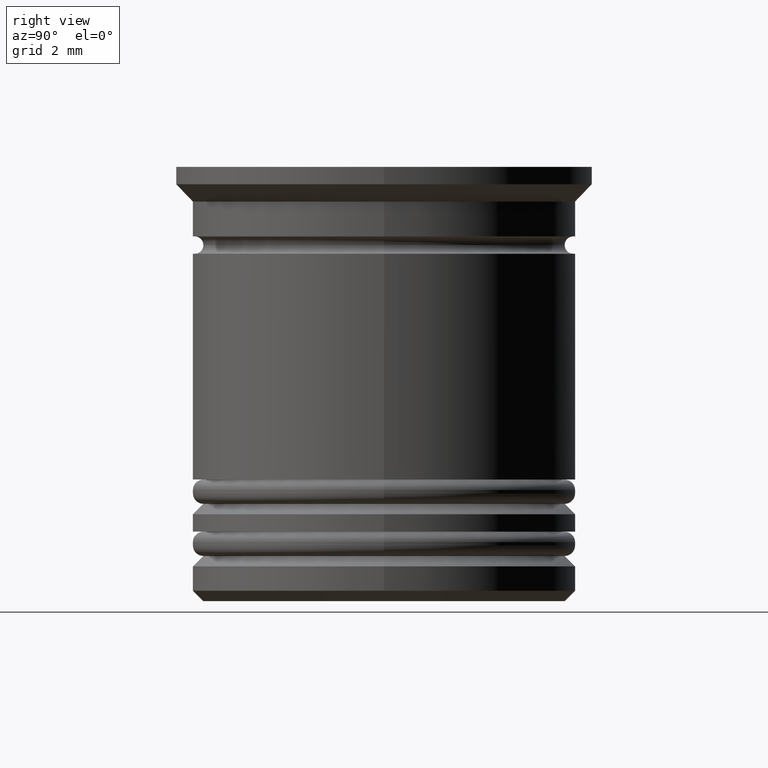
[diagram: clean part render]
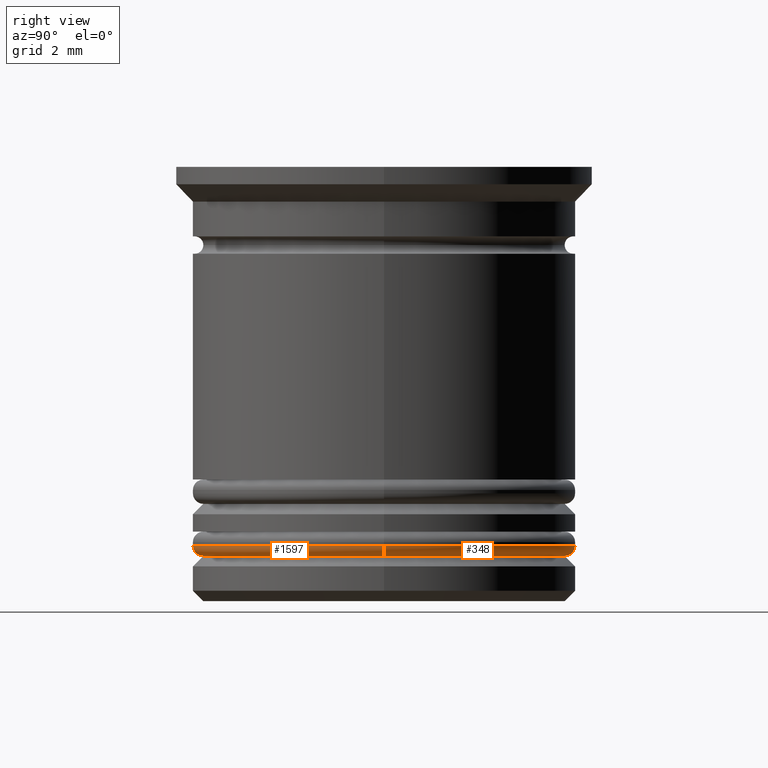
[diagram: same view with one multi-face feature highlighted, each face labeled with its STEP entity id]
A machine part, right view. The highlighted faces form ONE feature: a constant-radius fillet chain: 2 tangent blend faces with common blend radius 0.3 mm. The faces share edges in the B-rep.
Their STEP definitions:
[1] entity #1597 (Torus):
#43 = CARTESIAN_POINT ( 'NONE',  ( 5.200000000000001066, 0.000000000000000000, -10.90000000000000746 ) ) ;
#159 = ORIENTED_EDGE ( 'NONE', *, *, #1772, .T. ) ;
#165 = CARTESIAN_POINT ( 'NONE',  ( 0.000000000000000000, 0.000000000000000000, -10.90000000000000746 ) ) ;
#248 = CIRCLE ( 'NONE', #1848, 5.200000000000001066 ) ;
#317 = TOROIDAL_SURFACE ( 'NONE', #772, 5.200000000000001066, 0.2999999999999999889 ) ;
#367 = VERTEX_POINT ( 'NONE', #1965 ) ;
#408 = CIRCLE ( 'NONE', #1563, 5.500000000000001776 ) ;
#410 = AXIS2_PLACEMENT_3D ( 'NONE', #1320, #1175, #578 ) ;
#531 = AXIS2_PLACEMENT_3D ( 'NONE', #43, #1904, #639 ) ;
#578 = DIRECTION ( 'NONE',  ( -1.000000000000000000, 1.224646799147353207E-16, 0.000000000000000000 ) ) ;
#597 = CARTESIAN_POINT ( 'NONE',  ( 5.500000000000001776, 0.000000000000000000, -10.90000000000000746 ) ) ;
#616 = DIRECTION ( 'NONE',  ( 0.000000000000000000, 0.000000000000000000, 1.000000000000000000 ) ) ;
#627 = DIRECTION ( 'NONE',  ( 1.000000000000000000, 0.000000000000000000, 0.000000000000000000 ) ) ;
#639 = DIRECTION ( 'NONE',  ( 0.000000000000000000, 0.000000000000000000, -1.000000000000000000 ) ) ;
#677 = ORIENTED_EDGE ( 'NONE', *, *, #740, .F. ) ;
#714 = ORIENTED_EDGE ( 'NONE', *, *, #1046, .F. ) ;
#730 = VERTEX_POINT ( 'NONE', #1258 ) ;
#740 = EDGE_CURVE ( 'NONE', #367, #1371, #408, .T. ) ;
#772 = AXIS2_PLACEMENT_3D ( 'NONE', #1987, #616, #627 ) ;
#1033 = ORIENTED_EDGE ( 'NONE', *, *, #1608, .F. ) ;
#1046 = EDGE_CURVE ( 'NONE', #730, #367, #1757, .T. ) ;
#1067 = FACE_OUTER_BOUND ( 'NONE', #1782, .T. ) ;
#1097 = CARTESIAN_POINT ( 'NONE',  ( 5.200000000000001066, 0.000000000000000000, -11.20000000000000462 ) ) ;
#1175 = DIRECTION ( 'NONE',  ( 1.224646799147353207E-16, 1.000000000000000000, -0.000000000000000000 ) ) ;
#1258 = CARTESIAN_POINT ( 'NONE',  ( -5.200000000000001066, 6.551860375438340681E-16, -11.20000000000000462 ) ) ;
#1320 = CARTESIAN_POINT ( 'NONE',  ( -5.200000000000001066, 6.368163355566238354E-16, -10.90000000000000746 ) ) ;
#1371 = VERTEX_POINT ( 'NONE', #597 ) ;
#1418 = DIRECTION ( 'NONE',  ( 0.000000000000000000, 0.000000000000000000, 1.000000000000000000 ) ) ;
#1547 = DIRECTION ( 'NONE',  ( 1.000000000000000000, 0.000000000000000000, 0.000000000000000000 ) ) ;
#1563 = AXIS2_PLACEMENT_3D ( 'NONE', #165, #1418, #1708 ) ;
#1597 = ADVANCED_FACE ( 'NONE', ( #1067 ), #317, .T. ) ;
#1608 = EDGE_CURVE ( 'NONE', #1738, #730, #248, .T. ) ;
#1708 = DIRECTION ( 'NONE',  ( 1.000000000000000000, 0.000000000000000000, 0.000000000000000000 ) ) ;
#1722 = CIRCLE ( 'NONE', #531, 0.2999999999999999334 ) ;
#1738 = VERTEX_POINT ( 'NONE', #1097 ) ;
#1757 = CIRCLE ( 'NONE', #410, 0.2999999999999999334 ) ;
#1772 = EDGE_CURVE ( 'NONE', #1738, #1371, #1722, .T. ) ;
#1782 = EDGE_LOOP ( 'NONE', ( #714, #1033, #159, #677 ) ) ;
#1807 = CARTESIAN_POINT ( 'NONE',  ( 0.000000000000000000, 0.000000000000000000, -11.20000000000000462 ) ) ;
#1848 = AXIS2_PLACEMENT_3D ( 'NONE', #1807, #1973, #1547 ) ;
#1904 = DIRECTION ( 'NONE',  ( 0.000000000000000000, -1.000000000000000000, 0.000000000000000000 ) ) ;
#1965 = CARTESIAN_POINT ( 'NONE',  ( -5.500000000000001776, 6.735557395310443009E-16, -10.90000000000000746 ) ) ;
#1973 = DIRECTION ( 'NONE',  ( -0.000000000000000000, -0.000000000000000000, -1.000000000000000000 ) ) ;
#1987 = CARTESIAN_POINT ( 'NONE',  ( 0.000000000000000000, 0.000000000000000000, -10.90000000000000746 ) ) ;
[2] entity #348 (Torus):
#43 = CARTESIAN_POINT ( 'NONE',  ( 5.200000000000001066, 0.000000000000000000, -10.90000000000000746 ) ) ;
#118 = EDGE_CURVE ( 'NONE', #730, #1738, #1589, .T. ) ;
#237 = CIRCLE ( 'NONE', #1361, 5.500000000000001776 ) ;
#265 = EDGE_CURVE ( 'NONE', #1371, #367, #237, .T. ) ;
#348 = ADVANCED_FACE ( 'NONE', ( #1638 ), #1394, .T. ) ;
#367 = VERTEX_POINT ( 'NONE', #1965 ) ;
#405 = CARTESIAN_POINT ( 'NONE',  ( 0.000000000000000000, 0.000000000000000000, -11.20000000000000462 ) ) ;
#410 = AXIS2_PLACEMENT_3D ( 'NONE', #1320, #1175, #578 ) ;
#445 = ORIENTED_EDGE ( 'NONE', *, *, #265, .F. ) ;
#531 = AXIS2_PLACEMENT_3D ( 'NONE', #43, #1904, #639 ) ;
#578 = DIRECTION ( 'NONE',  ( -1.000000000000000000, 1.224646799147353207E-16, 0.000000000000000000 ) ) ;
#597 = CARTESIAN_POINT ( 'NONE',  ( 5.500000000000001776, 0.000000000000000000, -10.90000000000000746 ) ) ;
#613 = CARTESIAN_POINT ( 'NONE',  ( 0.000000000000000000, 0.000000000000000000, -10.90000000000000746 ) ) ;
#639 = DIRECTION ( 'NONE',  ( 0.000000000000000000, 0.000000000000000000, -1.000000000000000000 ) ) ;
#720 = DIRECTION ( 'NONE',  ( 0.000000000000000000, 0.000000000000000000, 1.000000000000000000 ) ) ;
#729 = DIRECTION ( 'NONE',  ( 0.000000000000000000, 0.000000000000000000, 1.000000000000000000 ) ) ;
#730 = VERTEX_POINT ( 'NONE', #1258 ) ;
#1005 = ORIENTED_EDGE ( 'NONE', *, *, #1046, .T. ) ;
#1046 = EDGE_CURVE ( 'NONE', #730, #367, #1757, .T. ) ;
#1097 = CARTESIAN_POINT ( 'NONE',  ( 5.200000000000001066, 0.000000000000000000, -11.20000000000000462 ) ) ;
#1112 = ORIENTED_EDGE ( 'NONE', *, *, #1772, .F. ) ;
#1175 = DIRECTION ( 'NONE',  ( 1.224646799147353207E-16, 1.000000000000000000, -0.000000000000000000 ) ) ;
#1258 = CARTESIAN_POINT ( 'NONE',  ( -5.200000000000001066, 6.551860375438340681E-16, -11.20000000000000462 ) ) ;
#1294 = DIRECTION ( 'NONE',  ( 1.000000000000000000, 0.000000000000000000, 0.000000000000000000 ) ) ;
#1320 = CARTESIAN_POINT ( 'NONE',  ( -5.200000000000001066, 6.368163355566238354E-16, -10.90000000000000746 ) ) ;
#1344 = CARTESIAN_POINT ( 'NONE',  ( 0.000000000000000000, 0.000000000000000000, -10.90000000000000746 ) ) ;
#1361 = AXIS2_PLACEMENT_3D ( 'NONE', #613, #720, #1660 ) ;
#1371 = VERTEX_POINT ( 'NONE', #597 ) ;
#1394 = TOROIDAL_SURFACE ( 'NONE', #1723, 5.200000000000001066, 0.2999999999999999889 ) ;
#1526 = AXIS2_PLACEMENT_3D ( 'NONE', #405, #1918, #1294 ) ;
#1530 = ORIENTED_EDGE ( 'NONE', *, *, #118, .F. ) ;
#1589 = CIRCLE ( 'NONE', #1526, 5.200000000000001066 ) ;
#1638 = FACE_OUTER_BOUND ( 'NONE', #1799, .T. ) ;
#1660 = DIRECTION ( 'NONE',  ( 1.000000000000000000, 0.000000000000000000, 0.000000000000000000 ) ) ;
#1722 = CIRCLE ( 'NONE', #531, 0.2999999999999999334 ) ;
#1723 = AXIS2_PLACEMENT_3D ( 'NONE', #1344, #729, #1801 ) ;
#1738 = VERTEX_POINT ( 'NONE', #1097 ) ;
#1757 = CIRCLE ( 'NONE', #410, 0.2999999999999999334 ) ;
#1772 = EDGE_CURVE ( 'NONE', #1738, #1371, #1722, .T. ) ;
#1799 = EDGE_LOOP ( 'NONE', ( #1530, #1005, #445, #1112 ) ) ;
#1801 = DIRECTION ( 'NONE',  ( 1.000000000000000000, 0.000000000000000000, 0.000000000000000000 ) ) ;
#1904 = DIRECTION ( 'NONE',  ( 0.000000000000000000, -1.000000000000000000, 0.000000000000000000 ) ) ;
#1918 = DIRECTION ( 'NONE',  ( -0.000000000000000000, -0.000000000000000000, -1.000000000000000000 ) ) ;
#1965 = CARTESIAN_POINT ( 'NONE',  ( -5.500000000000001776, 6.735557395310443009E-16, -10.90000000000000746 ) ) ;